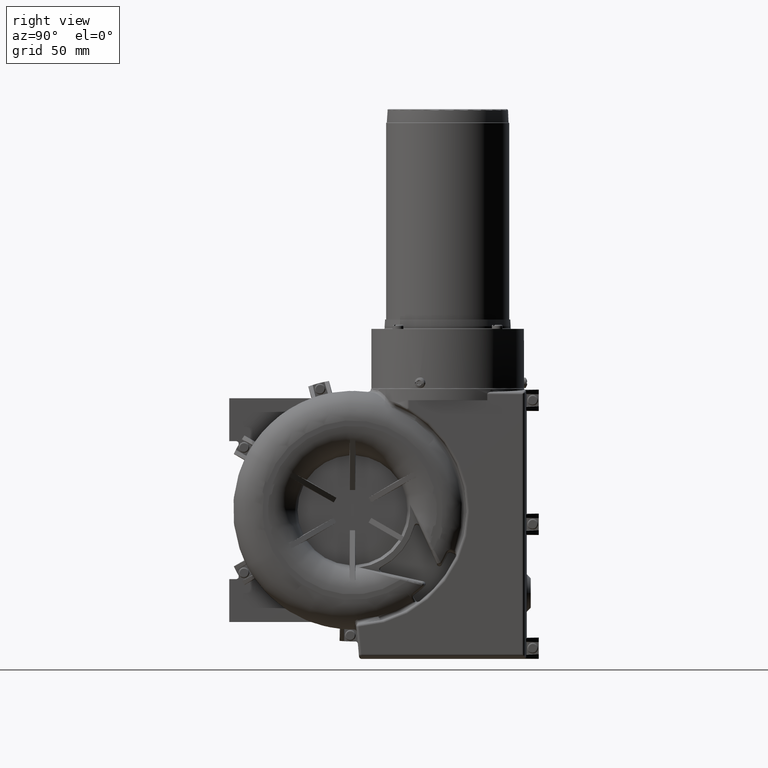
[diagram: clean part render]
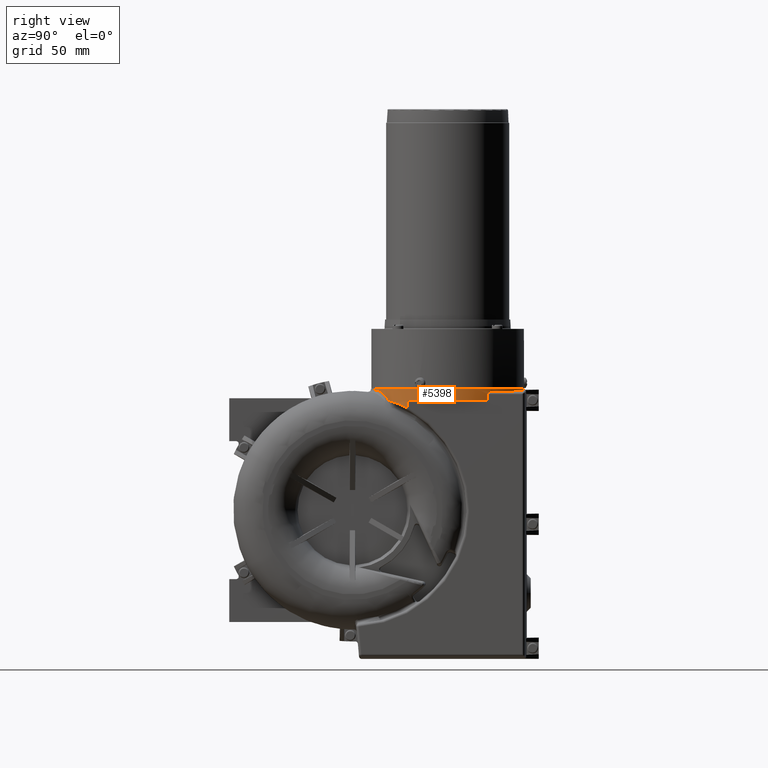
[diagram: same view with one face highlighted and labeled with its STEP entity id]
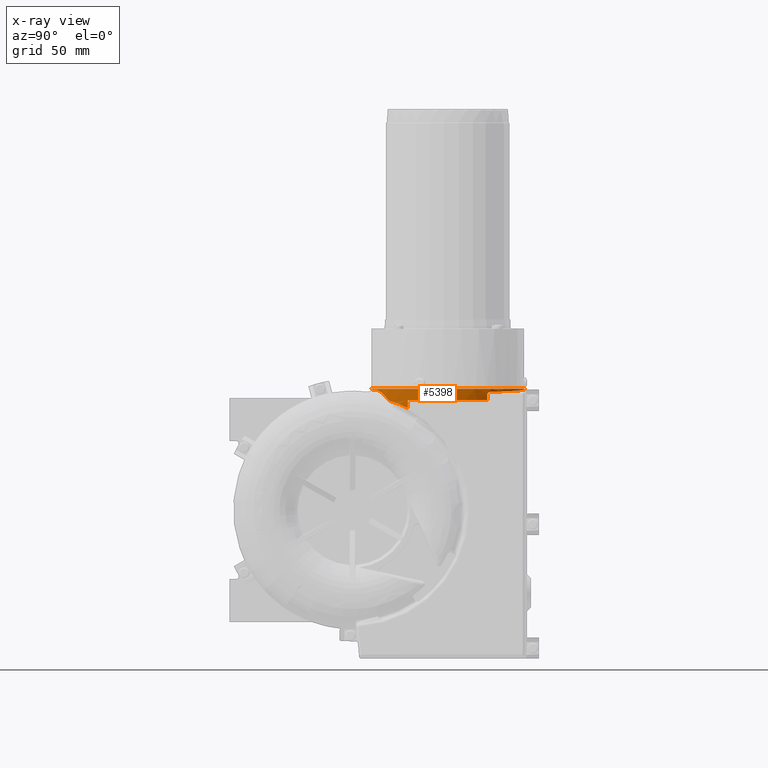
[diagram: x-ray of the same camera — body ghosted, the highlighted face saturated]
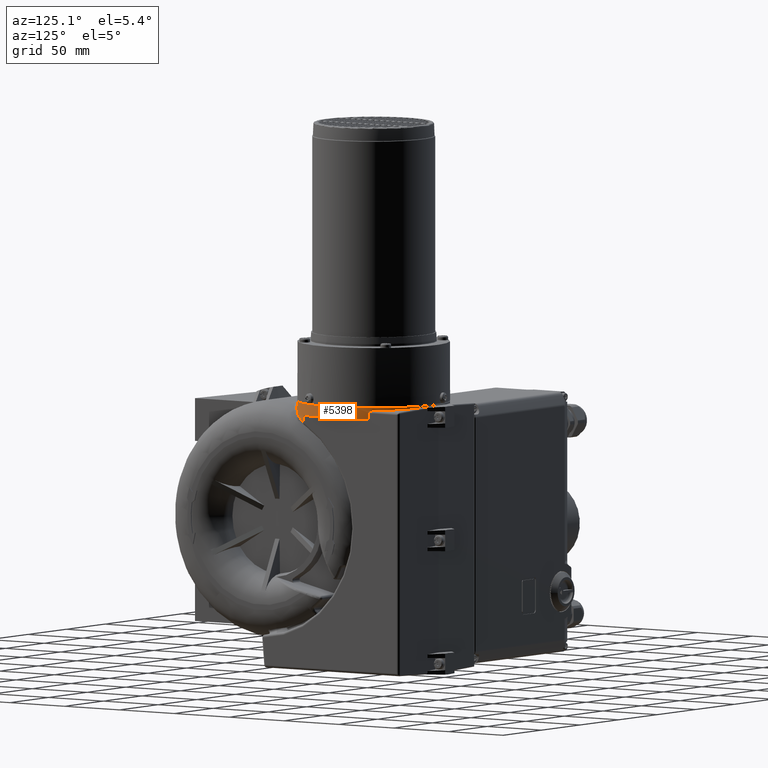
[diagram: same view with one face highlighted and labeled with its STEP entity id]
A machine part, right view. The second image highlights one B-rep face of the part: STEP entity #5398.
The next image is the same camera in x-ray: the body ghosted, the highlighted face saturated — about 0% of this face is hidden behind the body in this view.
A second angle (auxiliary view) of the same face is appended — the face is thin or edge-on in the first view.
In plain terms, the highlighted cylindrical surface (partial cylindrical patch) has radius 57.25 mm, axis along (-0, -0, -1).
Its self-contained STEP definition (entity closure, byte-faithful):
#5398 = ADVANCED_FACE( '', ( #11830 ), #11831, .T. );
#11830 = FACE_OUTER_BOUND( '', #23030, .T. );
#11831 = CYLINDRICAL_SURFACE( '', #23031, 57.2500237979200 );
#23030 = EDGE_LOOP( '', ( #41711, #41712, #41713, #41714, #41715, #41716, #41717, #41718, #41719, #41720, #41721 ) );
#23031 = AXIS2_PLACEMENT_3D( '', #41722, #41723, #41724 );
#41711 = ORIENTED_EDGE( '', *, *, #52711, .F. );
#41712 = ORIENTED_EDGE( '', *, *, #55912, .F. );
#41713 = ORIENTED_EDGE( '', *, *, #56146, .F. );
#41714 = ORIENTED_EDGE( '', *, *, #55464, .F. );
#41715 = ORIENTED_EDGE( '', *, *, #56351, .F. );
#41716 = ORIENTED_EDGE( '', *, *, #56352, .T. );
#41717 = ORIENTED_EDGE( '', *, *, #55410, .F. );
#41718 = ORIENTED_EDGE( '', *, *, #56353, .F. );
#41719 = ORIENTED_EDGE( '', *, *, #56354, .T. );
#41720 = ORIENTED_EDGE( '', *, *, #49843, .F. );
#41721 = ORIENTED_EDGE( '', *, *, #56355, .F. );
#41722 = CARTESIAN_POINT( '', ( -0.0522002216657436, 70.9999999999954, 90.9999999999916 ) );
#41723 = DIRECTION( '', ( -0.000000000000000, -0.000000000000000, -1.00000000000000 ) );
#41724 = DIRECTION( '', ( 0.000000000000000, -1.00000000000000, 0.000000000000000 ) );
#49843 = EDGE_CURVE( '', #59186, #59189, #59190, .T. );
#52711 = EDGE_CURVE( '', #64049, #64051, #64052, .T. );
#55410 = EDGE_CURVE( '', #67933, #67935, #67936, .T. );
#55464 = EDGE_CURVE( '', #68004, #68005, #68006, .T. );
#55912 = EDGE_CURVE( '', #68592, #64049, #68594, .T. );
#56146 = EDGE_CURVE( '', #68005, #68592, #68885, .T. );
#56351 = EDGE_CURVE( '', #69126, #68004, #69127, .T. );
#56352 = EDGE_CURVE( '', #69126, #67935, #69128, .T. );
#56353 = EDGE_CURVE( '', #69129, #67933, #69130, .T. );
#56354 = EDGE_CURVE( '', #69129, #59189, #69131, .T. );
#56355 = EDGE_CURVE( '', #64051, #59186, #69132, .T. );
#59186 = VERTEX_POINT( '', #73303 );
#59189 = VERTEX_POINT( '', #73307 );
#59190 = CIRCLE( '', #73308, 57.2500237979200 );
#64049 = VERTEX_POINT( '', #82612 );
#64051 = VERTEX_POINT( '', #82622 );
#64052 = B_SPLINE_CURVE_WITH_KNOTS( '', 3, ( #82623, #82624, #82625, #82626, #82627, #82628, #82629, #82630, #82631, #82632 ), .UNSPECIFIED., .F., .F., ( 4, 2, 2, 2, 4 ), ( 0.000000000000000, 0.500000000000000, 0.750000000000000, 0.875000000000000, 1.00000000000000 ), .UNSPECIFIED. );
#67933 = VERTEX_POINT( '', #89983 );
#67935 = VERTEX_POINT( '', #89986 );
#67936 = B_SPLINE_CURVE_WITH_KNOTS( '', 3, ( #89987, #89988, #89989, #89990, #89991, #89992, #89993, #89994, #89995, #89996, #89997, #89998, #89999, #90000, #90001, #90002, #90003 ), .UNSPECIFIED., .F., .F., ( 4, 1, 1, 1, 1, 1, 1, 1, 1, 1, 1, 1, 1, 1, 4 ), ( 0.000000000000000, 0.0328605405455393, 0.107721078301976, 0.214326599531928, 0.317006643603100, 0.412899929446795, 0.577350636628790, 0.705102462667121, 0.755794867120227, 0.802654179245105, 0.841895747636960, 0.878872680902422, 0.920744872019150, 0.960875240965769, 1.00000000000000 ), .UNSPECIFIED. );
#68004 = VERTEX_POINT( '', #90101 );
#68005 = VERTEX_POINT( '', #90102 );
#68006 = LINE( '', #90103, #90104 );
#68592 = VERTEX_POINT( '', #91235 );
#68594 = B_SPLINE_CURVE_WITH_KNOTS( '', 3, ( #91253, #91254, #91255, #91256, #91257, #91258, #91259, #91260, #91261 ), .UNSPECIFIED., .F., .F., ( 4, 1, 1, 1, 1, 1, 4 ), ( 0.000000000000000, 0.125000000000000, 0.250000000000001, 0.500000000000001, 0.625000000000001, 0.750000000000000, 1.00000000000000 ), .UNSPECIFIED. );
#68885 = B_SPLINE_CURVE_WITH_KNOTS( '', 3, ( #91700, #91701, #91702, #91703, #91704, #91705, #91706, #91707 ), .UNSPECIFIED., .F., .F., ( 4, 1, 1, 1, 1, 4 ), ( 0.000000000000000, 0.251499999412831, 0.377249999118900, 0.502999998824969, 0.754499998237107, 1.00000000000000 ), .UNSPECIFIED. );
#69126 = VERTEX_POINT( '', #92166 );
#69127 = CIRCLE( '', #92167, 57.2500237979200 );
#69128 = LINE( '', #92168, #92169 );
#69129 = VERTEX_POINT( '', #92170 );
#69130 = B_SPLINE_CURVE_WITH_KNOTS( '', 2, ( #92171, #92172, #92173, #92174, #92175, #92176, #92177, #92178, #92179, #92180, #92181, #92182, #92183, #92184, #92185, #92186, #92187 ), .UNSPECIFIED., .F., .F., ( 3, 2, 2, 2, 2, 2, 2, 2, 3 ), ( 0.000000000000000, 0.125000000000000, 0.250000000000000, 0.375000000000000, 0.500000000000000, 0.625000000000000, 0.750000000000000, 0.875000000000000, 1.00000000000000 ), .UNSPECIFIED. );
#69131 = LINE( '', #92188, #92189 );
#69132 = LINE( '', #92190, #92191 );
#73303 = CARTESIAN_POINT( '', ( -7.80467720254838E-012, 13.7499999999994, 90.4999999999936 ) );
#73307 = CARTESIAN_POINT( '', ( -3.11856718365770E-011, 128.249999999995, 90.4999999999936 ) );
#73308 = AXIS2_PLACEMENT_3D( '', #95907, #95908, #95909 );
#82612 = CARTESIAN_POINT( '', ( 22.2218620824060, 18.2607226686311, 89.5065692228426 ) );
#82622 = CARTESIAN_POINT( '', ( 1.39021110162786E-010, 13.7499998437316, 90.2382354235485 ) );
#82623 = CARTESIAN_POINT( '', ( 22.2218620827764, 18.2607226683173, 89.5065692228255 ) );
#82624 = CARTESIAN_POINT( '', ( 18.6927638413452, 16.7702328842874, 89.7895370329387 ) );
#82625 = CARTESIAN_POINT( '', ( 15.0689973177676, 15.6531661248110, 89.9636477752746 ) );
#82626 = CARTESIAN_POINT( '', ( 9.50466578385028, 14.5216778831291, 90.1312817161682 ) );
#82627 = CARTESIAN_POINT( '', ( 7.62851030029699, 14.2351479628997, 90.1716175405434 ) );
#82628 = CARTESIAN_POINT( '', ( 4.77519650975499, 13.9459332571976, 90.2116449550330 ) );
#82629 = CARTESIAN_POINT( '', ( 3.81726231084323, 13.8729448186742, 90.2215794683553 ) );
#82630 = CARTESIAN_POINT( '', ( 1.90515841903755, 13.7753809542462, 90.2348163123212 ) );
#82631 = CARTESIAN_POINT( '', ( 0.951333284675839, 13.7508607125859, 90.2381166891171 ) );
#82632 = CARTESIAN_POINT( '', ( 4.21481241302859E-010, 13.7499995311925, 90.2382354235472 ) );
#89983 = CARTESIAN_POINT( '', ( 47.0697989934080, 103.512803859980, 88.3562863993238 ) );
#89986 = CARTESIAN_POINT( '', ( 48.9999999999983, 100.520279102293, 86.3575047453004 ) );
#89987 = CARTESIAN_POINT( '', ( 47.0697989934123, 103.512803859983, 88.3562863993379 ) );
#89988 = CARTESIAN_POINT( '', ( 47.0972488259414, 103.472896112088, 88.3549811755597 ) );
#89989 = CARTESIAN_POINT( '', ( 47.1872329074614, 103.342073381711, 88.3507024841423 ) );
#89990 = CARTESIAN_POINT( '', ( 47.3650599619666, 103.081589363454, 88.3281344860646 ) );
#89991 = CARTESIAN_POINT( '', ( 47.5967897243155, 102.736521817432, 88.2725540110743 ) );
#89992 = CARTESIAN_POINT( '', ( 47.8395773316646, 102.368833980473, 88.1788052558526 ) );
#89993 = CARTESIAN_POINT( '', ( 48.1194505309864, 101.937997497705, 88.0271490191691 ) );
#89994 = CARTESIAN_POINT( '', ( 48.4036689692046, 101.491062671646, 87.8038058638869 ) );
#89995 = CARTESIAN_POINT( '', ( 48.6300071302595, 101.127064121104, 87.5298667111643 ) );
#89996 = CARTESIAN_POINT( '', ( 48.7610455677192, 100.913902561025, 87.3106350440606 ) );
#89997 = CARTESIAN_POINT( '', ( 48.8329639579563, 100.796146831472, 87.1629781204177 ) );
#89998 = CARTESIAN_POINT( '', ( 48.8897980400456, 100.702694270224, 87.0177801543296 ) );
#89999 = CARTESIAN_POINT( '', ( 48.9360669374515, 100.626272367435, 86.8678325852946 ) );
#90000 = CARTESIAN_POINT( '', ( 48.9717921266509, 100.567176241490, 86.7060387907881 ) );
#90001 = CARTESIAN_POINT( '', ( 48.9955872810278, 100.527669629076, 86.5322477678495 ) );
#90002 = CARTESIAN_POINT( '', ( 48.9985415886799, 100.522721684281, 86.4152576188884 ) );
#90003 = CARTESIAN_POINT( '', ( 48.9999999999897, 100.520279102296, 86.3575047453004 ) );
#90101 = CARTESIAN_POINT( '', ( 48.7032463332030, 40.9921400946596, 82.0018909365302 ) );
#90102 = CARTESIAN_POINT( '', ( 48.7032506114778, 40.9921470458154, 76.2493912993157 ) );
#90103 = CARTESIAN_POINT( '', ( 48.7032463332160, 40.9921400946516, 82.0018909365302 ) );
#90104 = VECTOR( '', #102621, 1000.00000000000 );
#91235 = CARTESIAN_POINT( '', ( 36.7537879842527, 27.1492935399143, 81.7850354081288 ) );
#91253 = CARTESIAN_POINT( '', ( 36.7537885424338, 27.1492940084241, 81.7850347694814 ) );
#91254 = CARTESIAN_POINT( '', ( 36.2925304970418, 26.7621381336743, 82.3127894355319 ) );
#91255 = CARTESIAN_POINT( '', ( 35.3236891333177, 25.9740196352220, 83.3386386323394 ) );
#91256 = CARTESIAN_POINT( '', ( 33.2494194746819, 24.3995195066279, 85.1992618942799 ) );
#91257 = CARTESIAN_POINT( '', ( 30.9643298285465, 22.8412903037747, 86.7678378635677 ) );
#91258 = CARTESIAN_POINT( '', ( 28.4275976406124, 21.3195923439255, 88.0065887377549 ) );
#91259 = CARTESIAN_POINT( '', ( 25.7930593873129, 19.8768340530269, 88.9720934527832 ) );
#91260 = CARTESIAN_POINT( '', ( 23.6888720501080, 18.8803039952004, 89.3889547481371 ) );
#91261 = CARTESIAN_POINT( '', ( 22.2218620827718, 18.2607226683282, 89.5065692228255 ) );
#91700 = CARTESIAN_POINT( '', ( 48.7032463332147, 40.9921400946776, 76.2493949612557 ) );
#91701 = CARTESIAN_POINT( '', ( 47.9348669282144, 39.7437111452922, 76.8841054036580 ) );
#91702 = CARTESIAN_POINT( '', ( 46.6938792385068, 37.8885757611011, 77.7686892360756 ) );
#91703 = CARTESIAN_POINT( '', ( 44.8544314187712, 35.4650124271199, 78.8203513849984 ) );
#91704 = CARTESIAN_POINT( '', ( 42.8792544752727, 33.0698378165594, 79.7928241425534 ) );
#91705 = CARTESIAN_POINT( '', ( 40.2375147262190, 30.2378895890051, 80.8273400234184 ) );
#91706 = CARTESIAN_POINT( '', ( 37.9378161026283, 28.1430820842688, 81.4909995788803 ) );
#91707 = CARTESIAN_POINT( '', ( 36.7537896116691, 27.1492940902607, 81.7850393516560 ) );
#92166 = CARTESIAN_POINT( '', ( 49.0000000000012, 100.520279102292, 82.0018909365302 ) );
#92167 = AXIS2_PLACEMENT_3D( '', #103633, #103634, #103635 );
#92168 = CARTESIAN_POINT( '', ( 49.0000000000072, 100.520279102296, 82.0018909365302 ) );
#92169 = VECTOR( '', #103636, 1000.00000000000 );
#92170 = CARTESIAN_POINT( '', ( -3.91430092985387E-012, 128.249999999994, 89.9999999999956 ) );
#92171 = CARTESIAN_POINT( '', ( 0.000000000000000, 128.249999999995, 89.9999999999956 ) );
#92172 = CARTESIAN_POINT( '', ( 3.64694771289719, 128.246605296370, 89.8726457795651 ) );
#92173 = CARTESIAN_POINT( '', ( 7.26098764945214, 127.781004816973, 89.7464407240067 ) );
#92174 = CARTESIAN_POINT( '', ( 10.7129183045891, 127.336289042910, 89.6258966492971 ) );
#92175 = CARTESIAN_POINT( '', ( 14.0837613595110, 126.477381111940, 89.5081842159833 ) );
#92176 = CARTESIAN_POINT( '', ( 17.3597959818829, 125.642630851118, 89.3937825660885 ) );
#92177 = CARTESIAN_POINT( '', ( 20.5150027356574, 124.428039336811, 89.2836003183411 ) );
#92178 = CARTESIAN_POINT( '', ( 23.6266626764782, 123.230211094650, 89.1749387588111 ) );
#92179 = CARTESIAN_POINT( '', ( 26.5788340108704, 121.678923040732, 89.0718466641426 ) );
#92180 = CARTESIAN_POINT( '', ( 29.5301838921270, 120.128066638737, 88.9687832552497 ) );
#92181 = CARTESIAN_POINT( '', ( 32.2827159874400, 118.244242174187, 88.8726627164307 ) );
#92182 = CARTESIAN_POINT( '', ( 35.0722635221052, 116.335084457270, 88.7752495699864 ) );
#92183 = CARTESIAN_POINT( '', ( 37.6190961432417, 114.109612095801, 88.6863122150896 ) );
#92184 = CARTESIAN_POINT( '', ( 40.2383176044347, 111.820884944249, 88.5948469861954 ) );
#92185 = CARTESIAN_POINT( '', ( 42.5637397574272, 109.228875010419, 88.5136414552198 ) );
#92186 = CARTESIAN_POINT( '', ( 44.9975997439279, 106.515995865252, 88.4286491916560 ) );
#92187 = CARTESIAN_POINT( '', ( 47.0697989934119, 103.512803859983, 88.3562863993238 ) );
#92188 = CARTESIAN_POINT( '', ( -7.80504063991036E-012, 128.249999999995, 89.9999999999956 ) );
#92189 = VECTOR( '', #103637, 1000.00000000000 );
#92190 = CARTESIAN_POINT( '', ( -2.92702862646190E-012, 13.7500000000009, 90.2382354235492 ) );
#92191 = VECTOR( '', #103638, 1000.00000000000 );
#95907 = CARTESIAN_POINT( '', ( -0.0522002216657436, 70.9999999999954, 90.4999999999936 ) );
#95908 = DIRECTION( '', ( 0.000000000000000, 0.000000000000000, 1.00000000000000 ) );
#95909 = DIRECTION( '', ( 0.000911793885748971, -0.999999584315868, 0.000000000000000 ) );
#102621 = DIRECTION( '', ( 2.45108079576700E-014, 4.70607512787300E-014, -1.00000000000000 ) );
#103633 = CARTESIAN_POINT( '', ( -0.0522002216657436, 70.9999999999954, 82.0018909365302 ) );
#103634 = DIRECTION( '', ( 0.000000000000000, 0.000000000000000, -1.00000000000000 ) );
#103635 = DIRECTION( '', ( 0.856806634610404, 0.515637848579402, 0.000000000000000 ) );
#103636 = DIRECTION( '', ( 0.000000000000000, -3.10767660093900E-014, 1.00000000000000 ) );
#103637 = DIRECTION( '', ( -4.67612623935200E-011, 1.35358391162400E-013, 1.00000000000000 ) );
#103638 = DIRECTION( '', ( -1.11717682987200E-011, 1.07729109908400E-014, 1.00000000000000 ) );